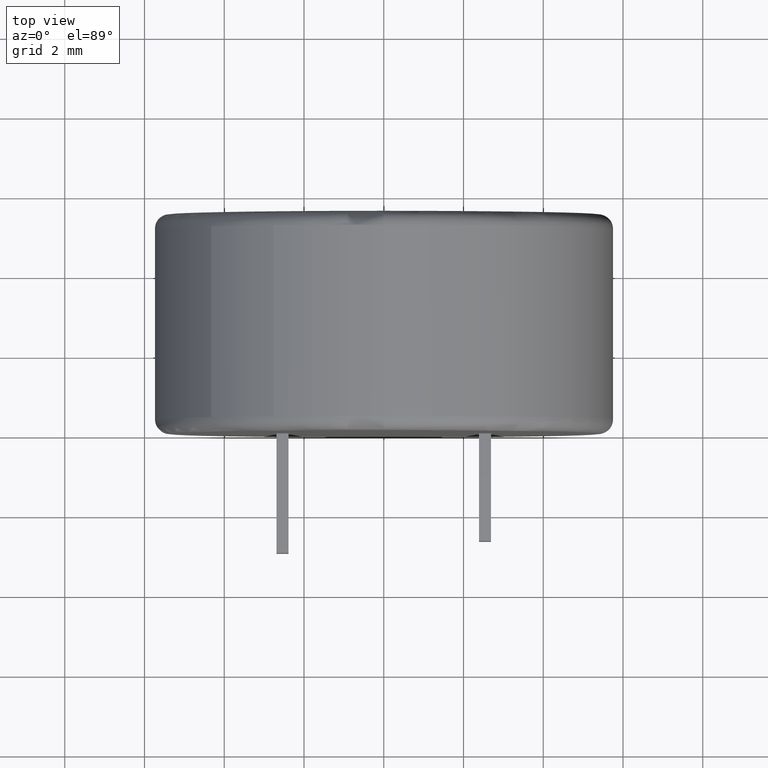
[diagram: clean part render]
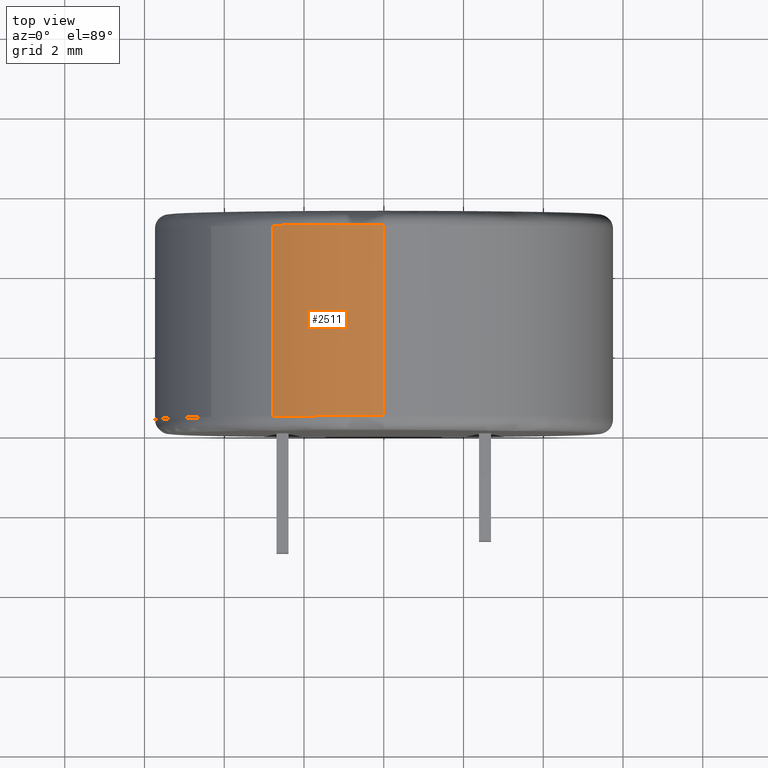
[diagram: same view with one face highlighted and labeled with its STEP entity id]
A machine part, top view. The second image highlights one B-rep face of the part: STEP entity #2511.
In plain terms, the highlighted cylindrical surface (partial cylindrical patch) has radius 5.75 mm, axis along (-0, -1, -0).
Its self-contained STEP definition (entity closure, byte-faithful):
#4 = EDGE_CURVE ( 'NONE', #1736, #2258, #1517, .T. ) ;
#12 = CARTESIAN_POINT ( 'NONE',  ( -2.774450761967215400, 0.3547500000000000100, 5.036360091317889400 ) ) ;
#89 = CIRCLE ( 'NONE', #1259, 5.750000000000000000 ) ;
#108 = ORIENTED_EDGE ( 'NONE', *, *, #1628, .F. ) ;
#243 = CARTESIAN_POINT ( 'NONE',  ( 7.041719095097280900E-016, 0.3547500000000000100, 5.750000000000000000 ) ) ;
#384 = CARTESIAN_POINT ( 'NONE',  ( 7.041719095097280900E-016, 5.500000000000000000, 5.750000000000000000 ) ) ;
#409 = EDGE_CURVE ( 'NONE', #1736, #2751, #969, .T. ) ;
#616 = CARTESIAN_POINT ( 'NONE',  ( -2.774450761967220700, 5.145249999999999900, 5.036360091317886800 ) ) ;
#640 = CARTESIAN_POINT ( 'NONE',  ( 0.0000000000000000000, 0.3547500000000000100, 0.0000000000000000000 ) ) ;
#718 = DIRECTION ( 'NONE',  ( -0.0000000000000000000, -1.000000000000000000, -0.0000000000000000000 ) ) ;
#765 = VECTOR ( 'NONE', #767, 1000.000000000000000 ) ;
#767 = DIRECTION ( 'NONE',  ( 0.0000000000000000000, 1.000000000000000000, 0.0000000000000000000 ) ) ;
#786 = CYLINDRICAL_SURFACE ( 'NONE', #1171, 5.750000000000000000 ) ;
#897 = CARTESIAN_POINT ( 'NONE',  ( 7.041719095097280900E-016, 5.145249999999999900, 5.750000000000000000 ) ) ;
#938 = DIRECTION ( 'NONE',  ( 0.0000000000000000000, 0.0000000000000000000, -1.000000000000000000 ) ) ;
#969 = LINE ( 'NONE', #1429, #765 ) ;
#1036 = AXIS2_PLACEMENT_3D ( 'NONE', #640, #2162, #1303 ) ;
#1171 = AXIS2_PLACEMENT_3D ( 'NONE', #1585, #718, #938 ) ;
#1259 = AXIS2_PLACEMENT_3D ( 'NONE', #1654, #1851, #2711 ) ;
#1303 = DIRECTION ( 'NONE',  ( 0.0000000000000000000, 0.0000000000000000000, 1.000000000000000000 ) ) ;
#1429 = CARTESIAN_POINT ( 'NONE',  ( -2.774450761967220700, 0.3547500000000000100, 5.036360091317886800 ) ) ;
#1517 = CIRCLE ( 'NONE', #1036, 5.750000000000000000 ) ;
#1553 = EDGE_LOOP ( 'NONE', ( #108, #1963, #2039, #1912 ) ) ;
#1585 = CARTESIAN_POINT ( 'NONE',  ( 0.0000000000000000000, 5.500000000000000000, 0.0000000000000000000 ) ) ;
#1626 = VECTOR ( 'NONE', #1883, 1000.000000000000000 ) ;
#1628 = EDGE_CURVE ( 'NONE', #2341, #2258, #2227, .T. ) ;
#1654 = CARTESIAN_POINT ( 'NONE',  ( 0.0000000000000000000, 5.145249999999999900, 0.0000000000000000000 ) ) ;
#1736 = VERTEX_POINT ( 'NONE', #12 ) ;
#1851 = DIRECTION ( 'NONE',  ( -0.0000000000000000000, -1.000000000000000000, -0.0000000000000000000 ) ) ;
#1883 = DIRECTION ( 'NONE',  ( -0.0000000000000000000, -1.000000000000000000, -0.0000000000000000000 ) ) ;
#1912 = ORIENTED_EDGE ( 'NONE', *, *, #4, .T. ) ;
#1963 = ORIENTED_EDGE ( 'NONE', *, *, #2613, .T. ) ;
#2039 = ORIENTED_EDGE ( 'NONE', *, *, #409, .F. ) ;
#2162 = DIRECTION ( 'NONE',  ( 0.0000000000000000000, 1.000000000000000000, 0.0000000000000000000 ) ) ;
#2227 = LINE ( 'NONE', #384, #1626 ) ;
#2258 = VERTEX_POINT ( 'NONE', #243 ) ;
#2341 = VERTEX_POINT ( 'NONE', #897 ) ;
#2423 = FACE_OUTER_BOUND ( 'NONE', #1553, .T. ) ;
#2511 = ADVANCED_FACE ( 'NONE', ( #2423 ), #786, .T. ) ;
#2613 = EDGE_CURVE ( 'NONE', #2341, #2751, #89, .T. ) ;
#2711 = DIRECTION ( 'NONE',  ( 0.0000000000000000000, 0.0000000000000000000, 1.000000000000000000 ) ) ;
#2751 = VERTEX_POINT ( 'NONE', #616 ) ;